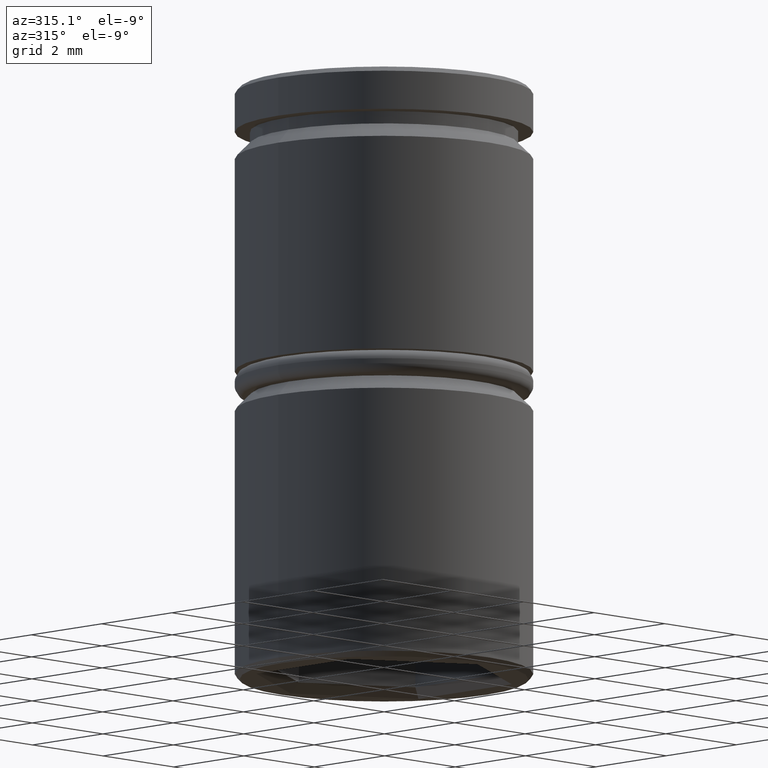
[diagram: clean part render]
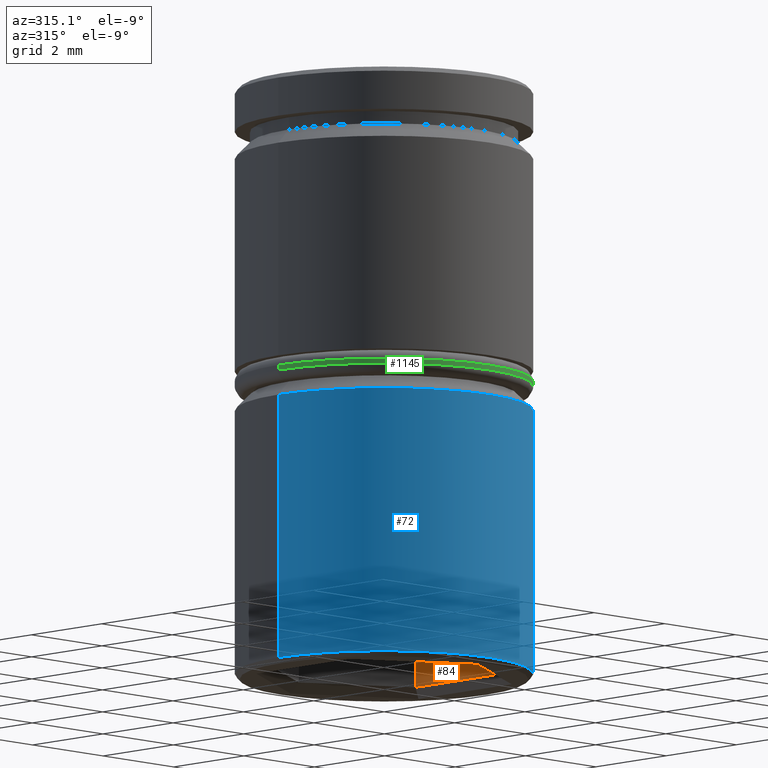
[diagram: same view with three faces highlighted in distinct colors, each labeled with its STEP entity id]
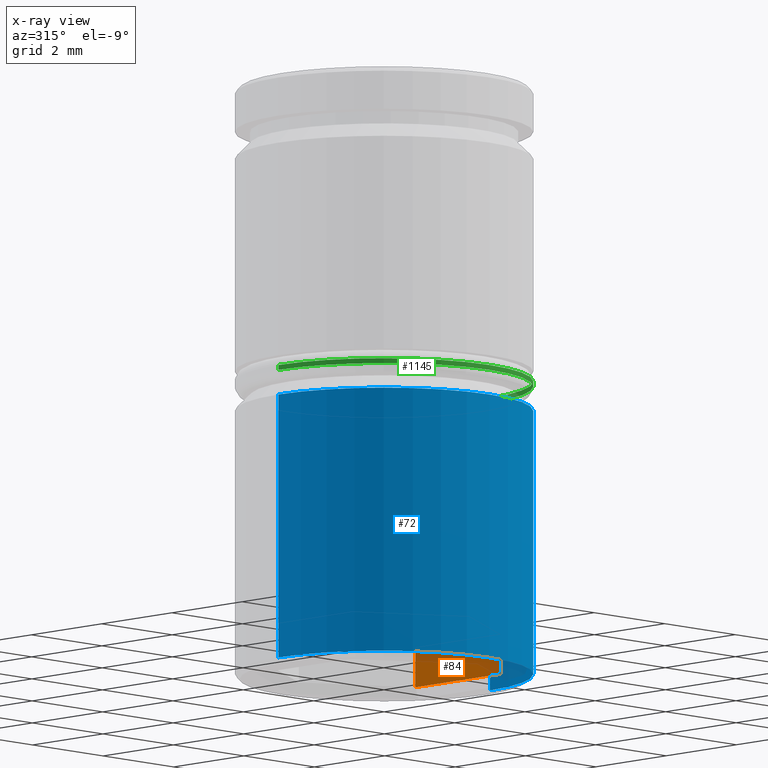
[diagram: x-ray of the same camera — body ghosted, the three highlighted faces saturated]
A machine part, auxiliary view with three faces highlighted in distinct colors.
The next image is the same camera in x-ray (body ghosted, the three faces saturated) — at least one of them is partly hidden behind the body in this view.
Their STEP definitions:

[orange] entity #84 — the highlighted planar face has unit normal (1, 0, -0).
#71 = PLANE ( 'NONE',  #256 ) ;
#84 = ADVANCED_FACE ( 'NONE', ( #791 ), #71, .F. ) ;
#113 = VERTEX_POINT ( 'NONE', #239 ) ;
#163 = DIRECTION ( 'NONE',  ( 1.000000000000000000, 0.000000000000000000, -0.000000000000000000 ) ) ;
#172 = EDGE_CURVE ( 'NONE', #667, #113, #266, .T. ) ;
#186 = LINE ( 'NONE', #547, #1132 ) ;
#190 = EDGE_CURVE ( 'NONE', #852, #700, #1094, .T. ) ;
#194 = CARTESIAN_POINT ( 'NONE',  ( 2.099999999999996980, 1.212435565298211504, -11.00000000000000000 ) ) ;
#227 = LINE ( 'NONE', #238, #511 ) ;
#238 = CARTESIAN_POINT ( 'NONE',  ( 2.099999999999996980, -1.212435565298212392, -11.00000000000000000 ) ) ;
#239 = CARTESIAN_POINT ( 'NONE',  ( 2.099999999999996980, -1.212435565298212392, -11.79999999999999893 ) ) ;
#255 = DIRECTION ( 'NONE',  ( -0.000000000000000000, 0.000000000000000000, -1.000000000000000000 ) ) ;
#256 = AXIS2_PLACEMENT_3D ( 'NONE', #684, #163, #255 ) ;
#266 = LINE ( 'NONE', #894, #1109 ) ;
#388 = EDGE_CURVE ( 'NONE', #852, #667, #186, .T. ) ;
#443 = CARTESIAN_POINT ( 'NONE',  ( 2.099999999999996980, 1.212435565298211504, -11.79999999999999893 ) ) ;
#496 = EDGE_CURVE ( 'NONE', #700, #113, #227, .T. ) ;
#511 = VECTOR ( 'NONE', #595, 1000.000000000000000 ) ;
#547 = CARTESIAN_POINT ( 'NONE',  ( 2.099999999999996980, 1.212435565298211504, -11.00000000000000000 ) ) ;
#552 = DIRECTION ( 'NONE',  ( 0.000000000000000000, -1.000000000000000000, 0.000000000000000000 ) ) ;
#595 = DIRECTION ( 'NONE',  ( -0.000000000000000000, -0.000000000000000000, -1.000000000000000000 ) ) ;
#596 = VECTOR ( 'NONE', #552, 1000.000000000000000 ) ;
#667 = VERTEX_POINT ( 'NONE', #443 ) ;
#684 = CARTESIAN_POINT ( 'NONE',  ( 2.099999999999996980, 1.212435565298211504, -11.00000000000000000 ) ) ;
#700 = VERTEX_POINT ( 'NONE', #701 ) ;
#701 = CARTESIAN_POINT ( 'NONE',  ( 2.099999999999996980, -1.212435565298212392, -11.00000000000000000 ) ) ;
#791 = FACE_OUTER_BOUND ( 'NONE', #1078, .T. ) ;
#813 = DIRECTION ( 'NONE',  ( 0.000000000000000000, -1.000000000000000000, 0.000000000000000000 ) ) ;
#830 = ORIENTED_EDGE ( 'NONE', *, *, #172, .T. ) ;
#852 = VERTEX_POINT ( 'NONE', #1091 ) ;
#894 = CARTESIAN_POINT ( 'NONE',  ( 2.099999999999996980, -1.212435565298212392, -11.79999999999999893 ) ) ;
#907 = ORIENTED_EDGE ( 'NONE', *, *, #388, .T. ) ;
#1014 = DIRECTION ( 'NONE',  ( -0.000000000000000000, -0.000000000000000000, -1.000000000000000000 ) ) ;
#1039 = ORIENTED_EDGE ( 'NONE', *, *, #190, .F. ) ;
#1078 = EDGE_LOOP ( 'NONE', ( #907, #830, #1122, #1039 ) ) ;
#1091 = CARTESIAN_POINT ( 'NONE',  ( 2.099999999999996980, 1.212435565298211504, -11.00000000000000000 ) ) ;
#1094 = LINE ( 'NONE', #194, #596 ) ;
#1109 = VECTOR ( 'NONE', #813, 1000.000000000000000 ) ;
#1122 = ORIENTED_EDGE ( 'NONE', *, *, #496, .F. ) ;
#1132 = VECTOR ( 'NONE', #1014, 1000.000000000000000 ) ;

[blue] entity #72 — the highlighted cylindrical surface (partial cylindrical patch) has radius 3 mm, axis along (-0, -0, 1).
#28 = DIRECTION ( 'NONE',  ( -0.000000000000000000, -0.000000000000000000, 1.000000000000000000 ) ) ;
#29 = DIRECTION ( 'NONE',  ( 1.000000000000000000, 0.000000000000000000, 0.000000000000000000 ) ) ;
#48 = DIRECTION ( 'NONE',  ( 0.000000000000000000, 0.000000000000000000, -1.000000000000000000 ) ) ;
#72 = ADVANCED_FACE ( 'NONE', ( #687 ), #1057, .T. ) ;
#74 = CARTESIAN_POINT ( 'NONE',  ( 0.000000000000000000, 0.000000000000000000, -11.89999999999999503 ) ) ;
#123 = ORIENTED_EDGE ( 'NONE', *, *, #563, .T. ) ;
#154 = CARTESIAN_POINT ( 'NONE',  ( -3.000000000000000000, 3.673940397442059868E-16, -6.549999999999997158 ) ) ;
#158 = CIRCLE ( 'NONE', #368, 3.000000000000000000 ) ;
#246 = DIRECTION ( 'NONE',  ( -0.000000000000000000, -0.000000000000000000, 1.000000000000000000 ) ) ;
#267 = EDGE_CURVE ( 'NONE', #569, #374, #158, .T. ) ;
#337 = CIRCLE ( 'NONE', #371, 3.000000000000000000 ) ;
#341 = DIRECTION ( 'NONE',  ( 1.000000000000000000, 0.000000000000000000, 0.000000000000000000 ) ) ;
#368 = AXIS2_PLACEMENT_3D ( 'NONE', #74, #528, #710 ) ;
#371 = AXIS2_PLACEMENT_3D ( 'NONE', #584, #48, #29 ) ;
#373 = VECTOR ( 'NONE', #28, 1000.000000000000000 ) ;
#374 = VERTEX_POINT ( 'NONE', #559 ) ;
#377 = CARTESIAN_POINT ( 'NONE',  ( -3.000000000000000000, 3.673940397442059868E-16, 0.000000000000000000 ) ) ;
#406 = ORIENTED_EDGE ( 'NONE', *, *, #1162, .F. ) ;
#430 = AXIS2_PLACEMENT_3D ( 'NONE', #530, #246, #341 ) ;
#516 = CARTESIAN_POINT ( 'NONE',  ( -3.000000000000000000, 3.673940397442059868E-16, -11.89999999999999503 ) ) ;
#528 = DIRECTION ( 'NONE',  ( -0.000000000000000000, -0.000000000000000000, 1.000000000000000000 ) ) ;
#530 = CARTESIAN_POINT ( 'NONE',  ( 0.000000000000000000, 0.000000000000000000, 0.000000000000000000 ) ) ;
#559 = CARTESIAN_POINT ( 'NONE',  ( 3.000000000000000000, 0.000000000000000000, -11.89999999999999503 ) ) ;
#563 = EDGE_CURVE ( 'NONE', #1017, #641, #337, .T. ) ;
#569 = VERTEX_POINT ( 'NONE', #516 ) ;
#584 = CARTESIAN_POINT ( 'NONE',  ( 0.000000000000000000, 0.000000000000000000, -6.549999999999997158 ) ) ;
#641 = VERTEX_POINT ( 'NONE', #154 ) ;
#648 = ORIENTED_EDGE ( 'NONE', *, *, #267, .T. ) ;
#687 = FACE_OUTER_BOUND ( 'NONE', #692, .T. ) ;
#692 = EDGE_LOOP ( 'NONE', ( #406, #648, #940, #123 ) ) ;
#710 = DIRECTION ( 'NONE',  ( -1.000000000000000000, 0.000000000000000000, 0.000000000000000000 ) ) ;
#745 = DIRECTION ( 'NONE',  ( -0.000000000000000000, -0.000000000000000000, 1.000000000000000000 ) ) ;
#755 = CARTESIAN_POINT ( 'NONE',  ( 3.000000000000000000, 0.000000000000000000, -6.549999999999997158 ) ) ;
#766 = VECTOR ( 'NONE', #745, 1000.000000000000000 ) ;
#928 = EDGE_CURVE ( 'NONE', #374, #1017, #1117, .T. ) ;
#929 = CARTESIAN_POINT ( 'NONE',  ( 3.000000000000000000, 0.000000000000000000, 0.000000000000000000 ) ) ;
#940 = ORIENTED_EDGE ( 'NONE', *, *, #928, .T. ) ;
#994 = LINE ( 'NONE', #377, #766 ) ;
#1017 = VERTEX_POINT ( 'NONE', #755 ) ;
#1057 = CYLINDRICAL_SURFACE ( 'NONE', #430, 3.000000000000000000 ) ;
#1117 = LINE ( 'NONE', #929, #373 ) ;
#1162 = EDGE_CURVE ( 'NONE', #569, #641, #994, .T. ) ;

[green] entity #1145 — the highlighted cylindrical surface (partial cylindrical patch) has radius 3 mm, axis along (-0, -0, 1).
#8 = CARTESIAN_POINT ( 'NONE',  ( 0.000000000000000000, 0.000000000000000000, -14.73528137423857132 ) ) ;
#36 = ORIENTED_EDGE ( 'NONE', *, *, #100, .T. ) ;
#50 = ORIENTED_EDGE ( 'NONE', *, *, #1121, .F. ) ;
#99 = CIRCLE ( 'NONE', #654, 3.000000000000000444 ) ;
#100 = EDGE_CURVE ( 'NONE', #101, #581, #605, .T. ) ;
#101 = VERTEX_POINT ( 'NONE', #437 ) ;
#121 = VECTOR ( 'NONE', #1061, 1000.000000000000000 ) ;
#176 = DIRECTION ( 'NONE',  ( 0.000000000000000000, 0.000000000000000000, 1.000000000000000000 ) ) ;
#197 = DIRECTION ( 'NONE',  ( -0.000000000000000000, -0.000000000000000000, 1.000000000000000000 ) ) ;
#263 = CARTESIAN_POINT ( 'NONE',  ( 0.000000000000000000, 0.000000000000000000, -5.949999999999998401 ) ) ;
#282 = DIRECTION ( 'NONE',  ( 1.000000000000000000, 0.000000000000000000, 0.000000000000000000 ) ) ;
#328 = CARTESIAN_POINT ( 'NONE',  ( 3.000000000000000444, 0.000000000000000000, -5.949999999999998401 ) ) ;
#429 = CARTESIAN_POINT ( 'NONE',  ( 3.000000000000000444, 0.000000000000000000, -14.73528137423857132 ) ) ;
#437 = CARTESIAN_POINT ( 'NONE',  ( 3.000000000000000444, 0.000000000000000000, -6.049999999999999822 ) ) ;
#448 = DIRECTION ( 'NONE',  ( 0.000000000000000000, 0.000000000000000000, -1.000000000000000000 ) ) ;
#449 = AXIS2_PLACEMENT_3D ( 'NONE', #826, #176, #282 ) ;
#456 = CYLINDRICAL_SURFACE ( 'NONE', #655, 3.000000000000000444 ) ;
#474 = LINE ( 'NONE', #1097, #618 ) ;
#498 = ORIENTED_EDGE ( 'NONE', *, *, #747, .T. ) ;
#519 = CARTESIAN_POINT ( 'NONE',  ( -3.000000000000000444, 3.673940397442060361E-16, -5.949999999999998401 ) ) ;
#550 = DIRECTION ( 'NONE',  ( -0.000000000000000000, -0.000000000000000000, 1.000000000000000000 ) ) ;
#581 = VERTEX_POINT ( 'NONE', #328 ) ;
#605 = LINE ( 'NONE', #429, #121 ) ;
#618 = VECTOR ( 'NONE', #550, 1000.000000000000000 ) ;
#647 = ORIENTED_EDGE ( 'NONE', *, *, #856, .T. ) ;
#654 = AXIS2_PLACEMENT_3D ( 'NONE', #263, #448, #875 ) ;
#655 = AXIS2_PLACEMENT_3D ( 'NONE', #8, #197, #985 ) ;
#735 = CARTESIAN_POINT ( 'NONE',  ( -3.000000000000000444, 3.673940397442060361E-16, -6.049999999999999822 ) ) ;
#747 = EDGE_CURVE ( 'NONE', #581, #1037, #99, .T. ) ;
#826 = CARTESIAN_POINT ( 'NONE',  ( 0.000000000000000000, 0.000000000000000000, -6.049999999999999822 ) ) ;
#831 = EDGE_LOOP ( 'NONE', ( #50, #647, #36, #498 ) ) ;
#834 = FACE_OUTER_BOUND ( 'NONE', #831, .T. ) ;
#856 = EDGE_CURVE ( 'NONE', #1111, #101, #1054, .T. ) ;
#875 = DIRECTION ( 'NONE',  ( -1.000000000000000000, 0.000000000000000000, 0.000000000000000000 ) ) ;
#985 = DIRECTION ( 'NONE',  ( 1.000000000000000000, 0.000000000000000000, 0.000000000000000000 ) ) ;
#1037 = VERTEX_POINT ( 'NONE', #519 ) ;
#1054 = CIRCLE ( 'NONE', #449, 3.000000000000000444 ) ;
#1061 = DIRECTION ( 'NONE',  ( -0.000000000000000000, -0.000000000000000000, 1.000000000000000000 ) ) ;
#1097 = CARTESIAN_POINT ( 'NONE',  ( -3.000000000000000444, 3.673940397442060361E-16, -14.73528137423857132 ) ) ;
#1111 = VERTEX_POINT ( 'NONE', #735 ) ;
#1121 = EDGE_CURVE ( 'NONE', #1111, #1037, #474, .T. ) ;
#1145 = ADVANCED_FACE ( 'NONE', ( #834 ), #456, .T. ) ;